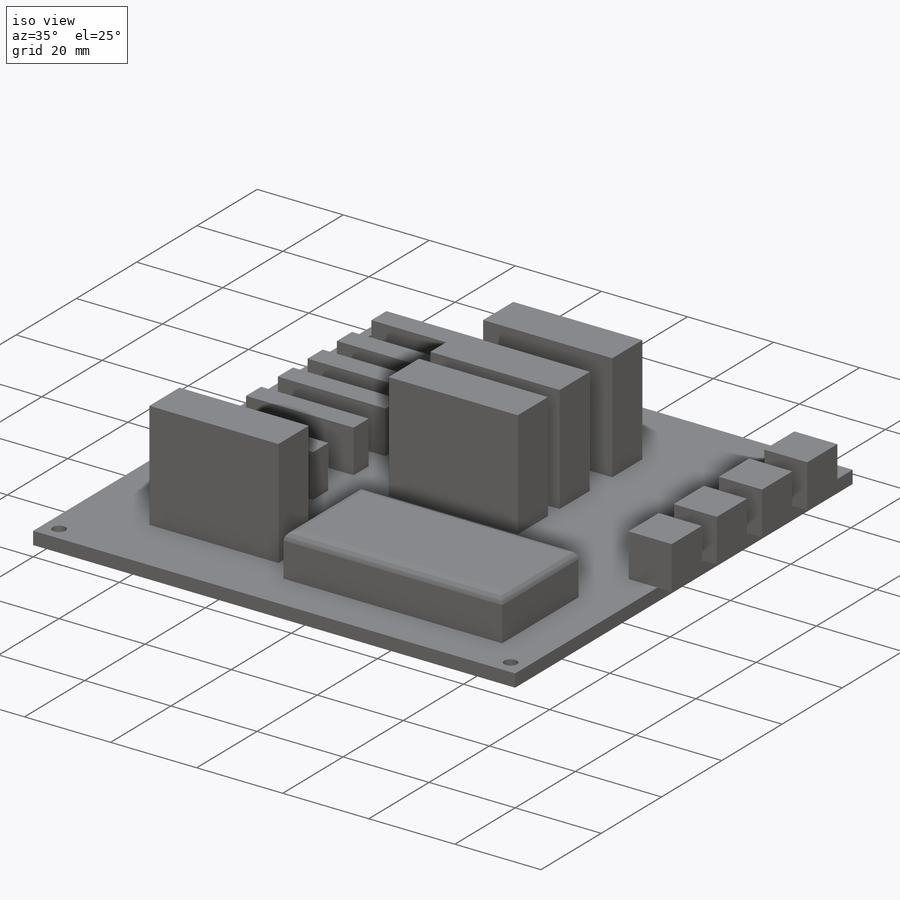
[diagram: iso view]
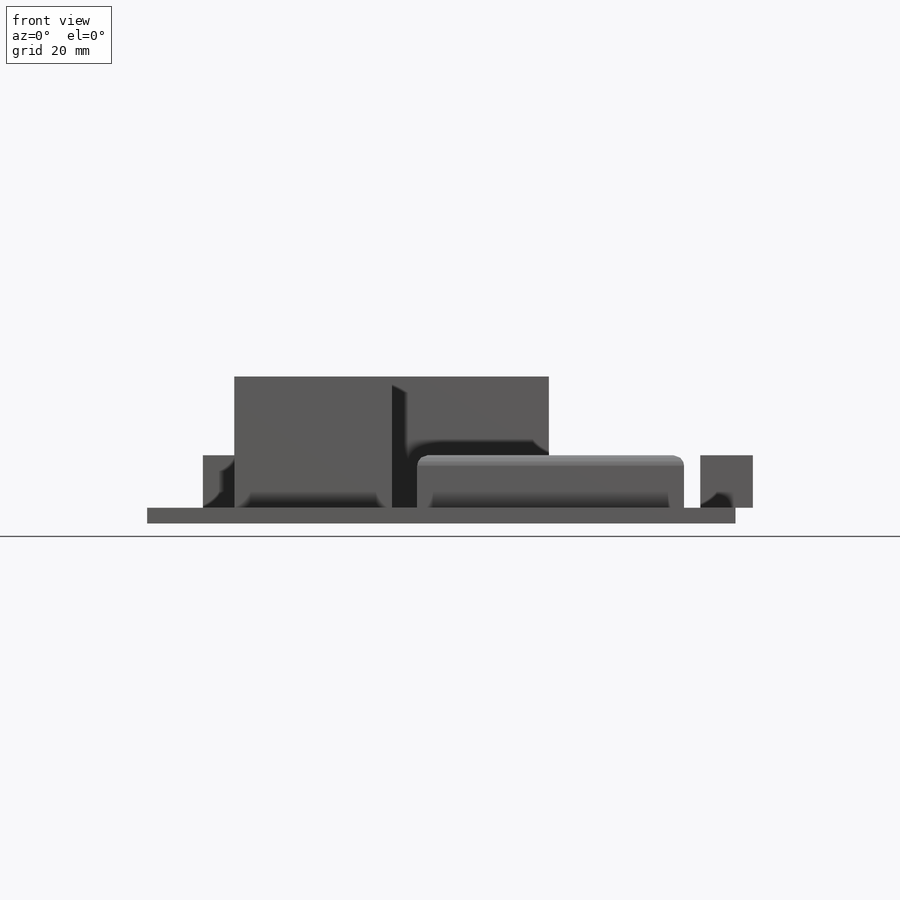
[diagram: front view]
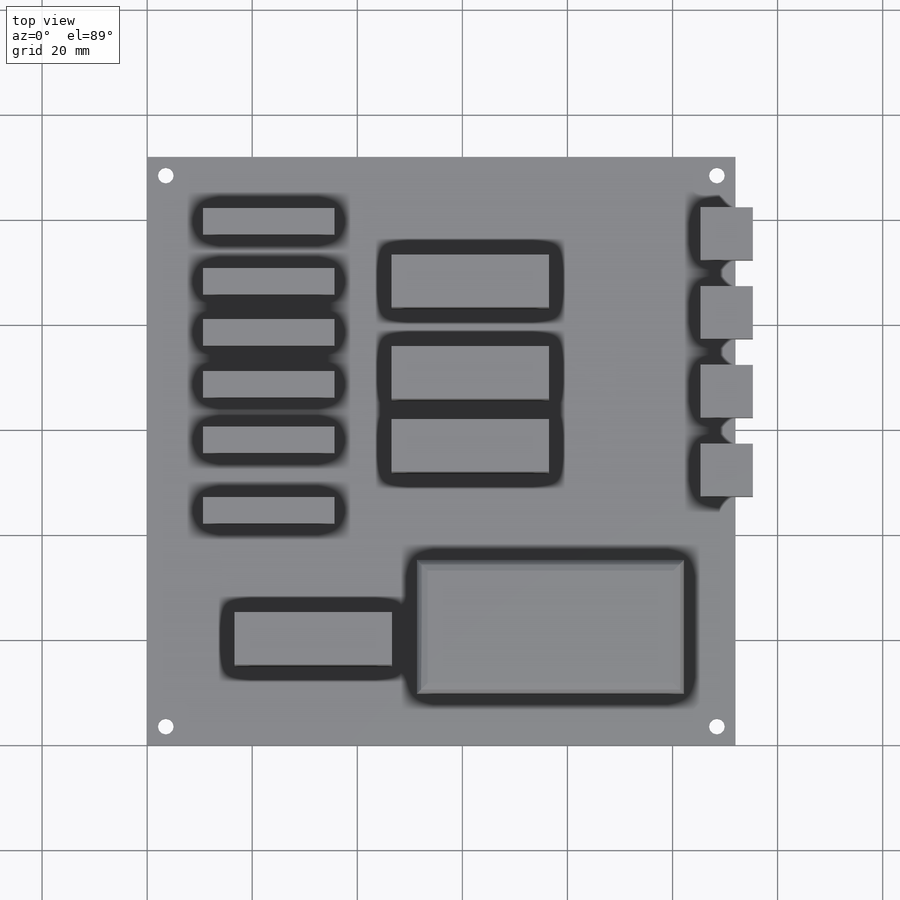
[diagram: top view]
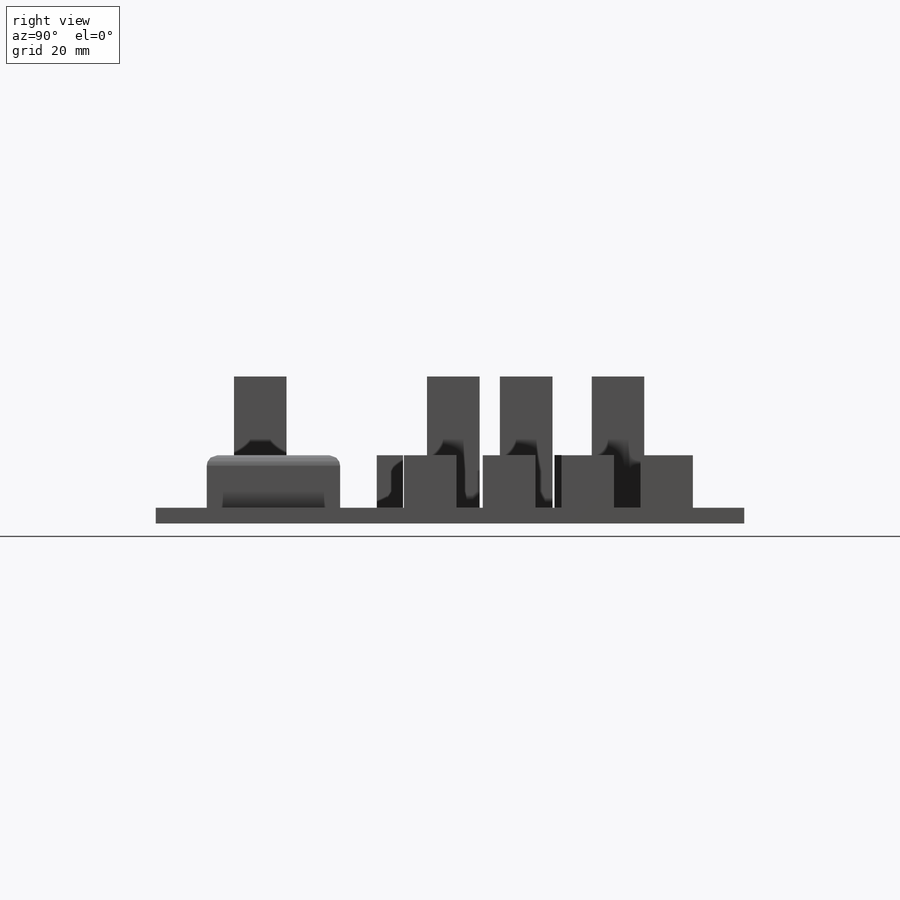
[diagram: right view]
SOLIDWORKS PART (.sldprt)
format: sldprt  version: not decoded by parser v0  size: 372,224 bytes
history: native  units: mm
features: sketch x5, extrude x5, plane x3, material x1, fillet x1 (+11 scaffold rows collapsed)
feature tree (26):
  scaffold x11  (default folders/planes/origin — collapsed)
  material  "Matériau <non spécifié>"
  plane  "Face"
  plane  "Dessus"
  plane  "Droite"
  sketch  "Esquisse1"  dims[D3=3.0mm D1=112.0mm D2=112.0mm D4=3.55mm D5=3.55mm]
  extrude  "Extrusion1"  Depth=3mm
  sketch  "Esquisse2"  dims[D1=25.4mm D2=50.8mm]
  extrude  "Extrusion2"  Depth=10mm
  fillet  "Congé1"  Radius=2mm
  sketch  "Esquisse3"  dims[c1.D1=10.0mm c1.D2=10.0mm c1.D3=5.0mm c1.D4=5.0mm c1.D5=10.0mm c1.D6=10.0mm c1.D7=10.0mm c1.D8=5.0mm c2.D7=10.0mm c2.D8=5.0mm c3.D7=5.0mm c3.D8=5.0mm c3.D3=10.0mm c3.D1=10.0mm c3.D2=10.0mm c4.D3=5.0mm]
  extrude  "Extrusion3"  Depth=10mm
  sketch  "Esquisse4"  dims[D1=10.0mm D2=30.0mm D3=10.0mm D4=30.0mm D5=10.0mm D6=30.0mm]
  extrude  "Extrusion4"  Depth=25mm
  sketch  "Esquisse6"  dims[D1=25.0mm D2=5.0mm D3=25.0mm D4=5.0mm D5=25.0mm D6=5.0mm D7=25.0mm D8=5.0mm D9=25.0mm D10=5.0mm D11=25.0mm D12=5.0mm]
  extrude  "Extrusion6"  Depth=10mm
decode coverage: 11 of 11 modeling features carry decoded parameters
note: suppression state not decoded; provenance and decode notes live in map.json
